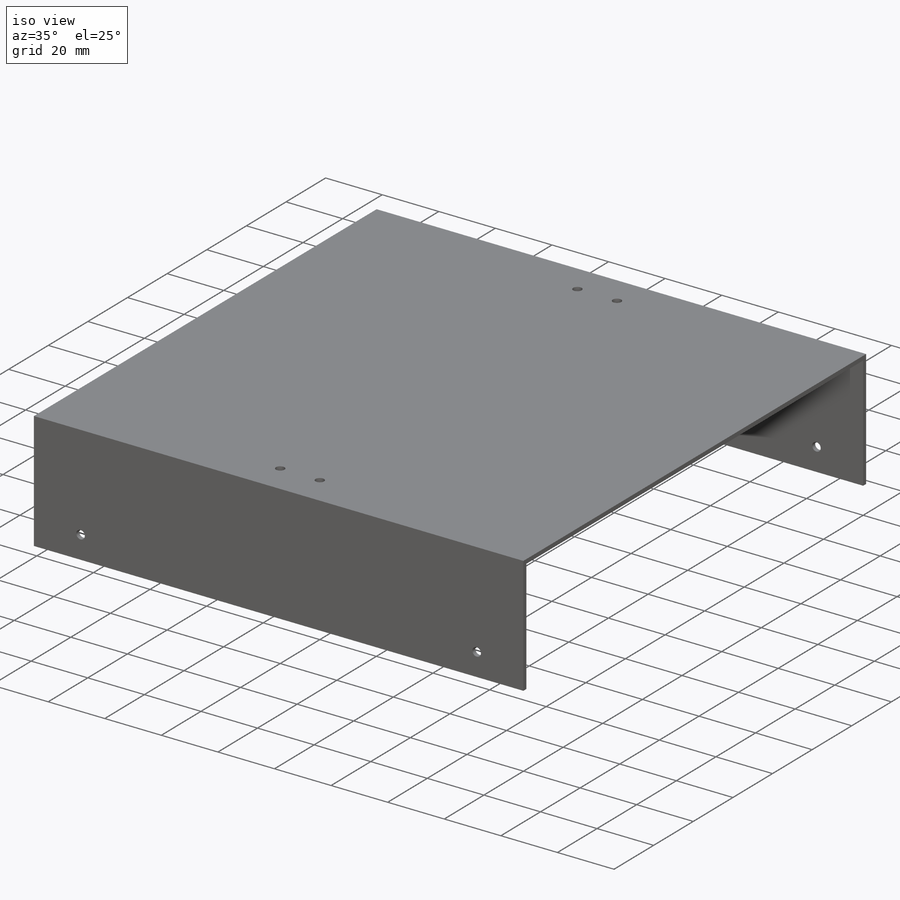
[diagram: iso view]
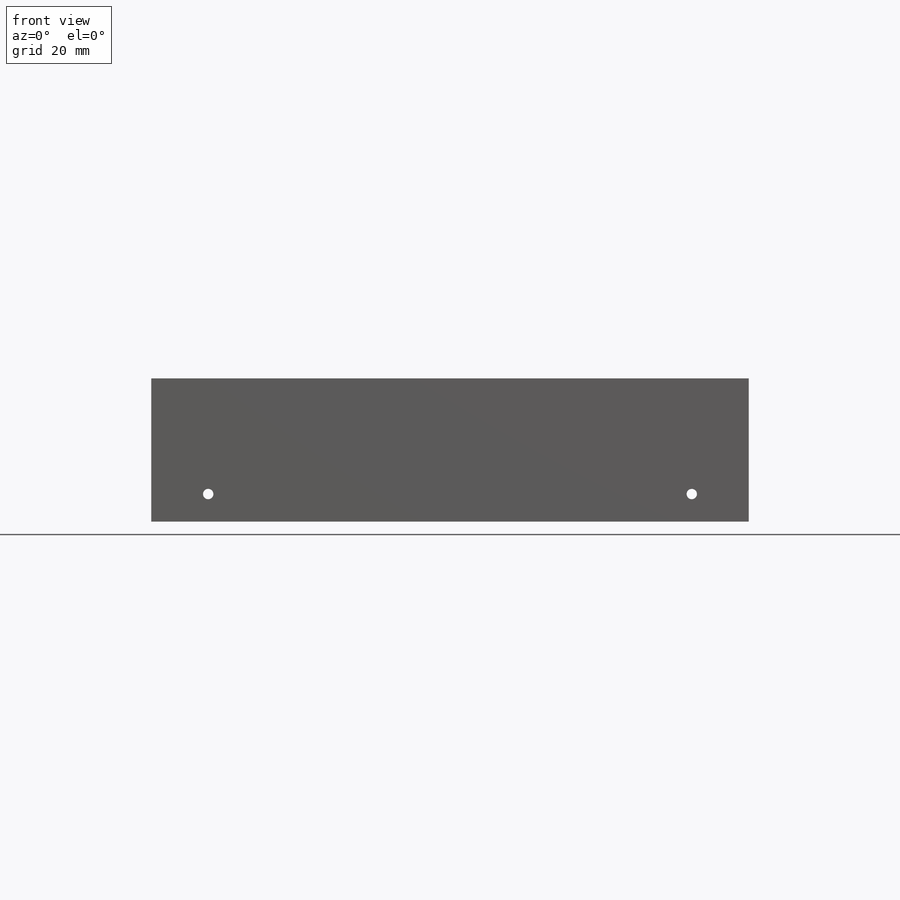
[diagram: front view]
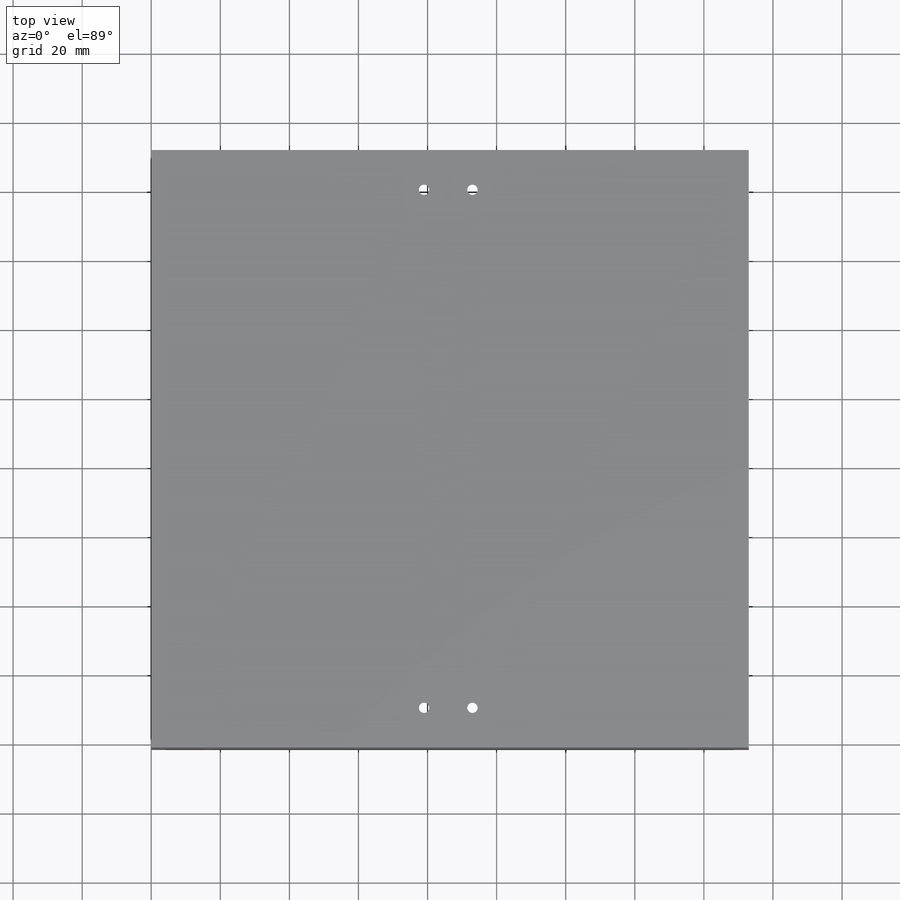
[diagram: top view]
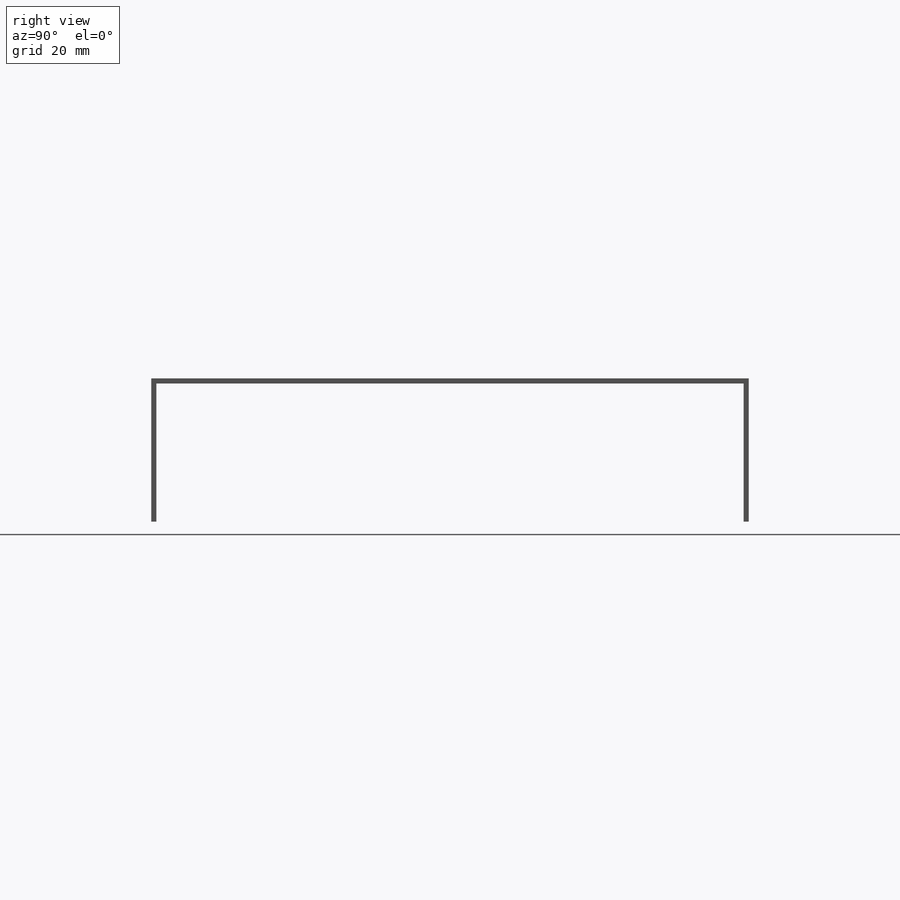
[diagram: right view]
SOLIDWORKS PART (.sldprt)
format: sldprt  version: not decoded by parser v0  size: 193,536 bytes
history: native  units: mm
features: sketch x5, extrude x3, cut_extrude x2, material x1 (+13 scaffold rows collapsed)
feature tree (24):
  scaffold x13  (default folders/planes/origin — collapsed)
  material  "Material <not specified>"
  sketch  "Sketch1"  dims[D1=170.0mm D2=173.0mm D3=170.0mm]
  extrude  "Boss-Extrude1"  Depth=1.5mm
  sketch  "Sketch2"  dims[D1=41.5mm D2=173.0mm]
  extrude  "Boss-Extrude2"  Depth=1.5mm
  sketch  "Sketch3"  dims[D1=41.5mm D2=173.0mm]
  extrude  "Boss-Extrude3"  Depth=1.5mm
  sketch  "Sketch4"  dims[D1=8.0mm D2=16.5mm D3=16.5mm D4=8.0mm]
  cut_extrude  "Cut-Extrude1"  Depth=1000mm
  sketch  "Sketch5"  dims[c1.D1=~5.296045mm c1.D2=~1.854006mm c2.D1=79.0mm c2.D2=80.0mm c2.D3=80.0mm c2.D4=11.5mm c2.D5=11.5mm c2.D6=11.5mm c2.D7=11.5mm c2.D8=14.0mm c2.D9=60.0mm c2.D10=14.0mm]
  cut_extrude  "Cut-Extrude2"  Depth=5mm
decode coverage: 10 of 10 modeling features carry decoded parameters
note: ~ marks probable driven/reference dimensions
note: suppression state not decoded; provenance and decode notes live in map.json
